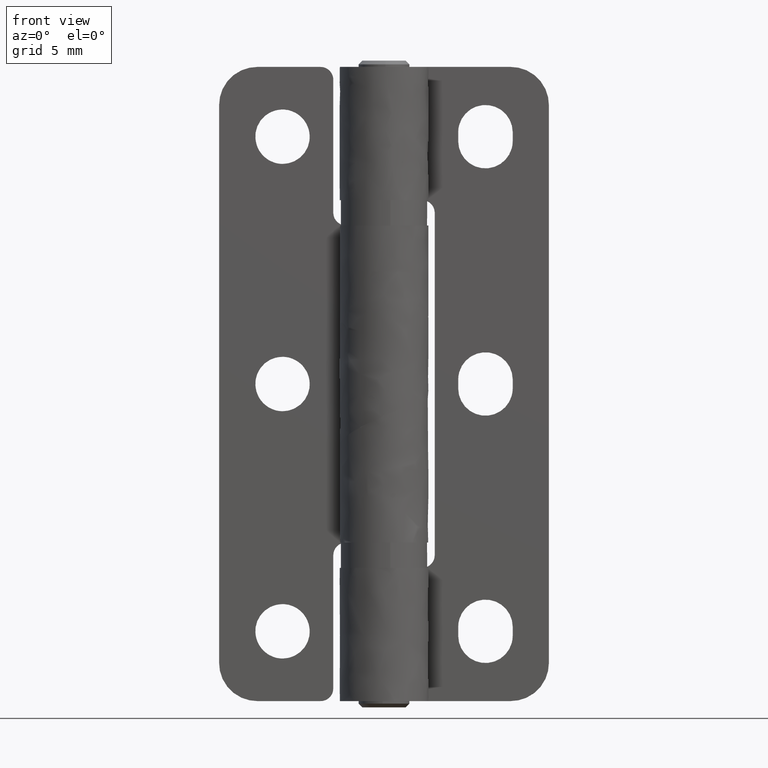
[diagram: clean part render]
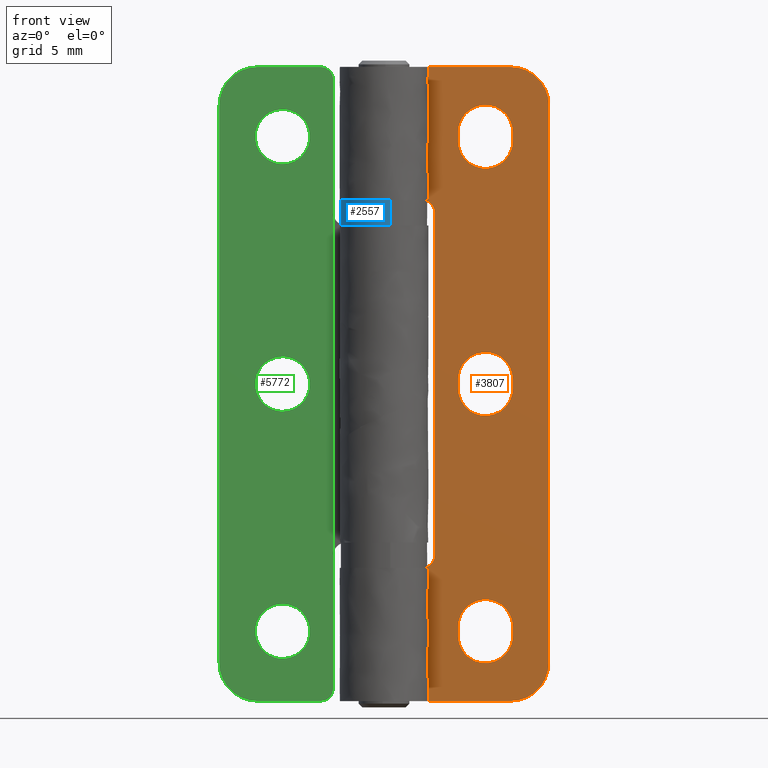
[diagram: same view with three faces highlighted in distinct colors, each labeled with its STEP entity id]
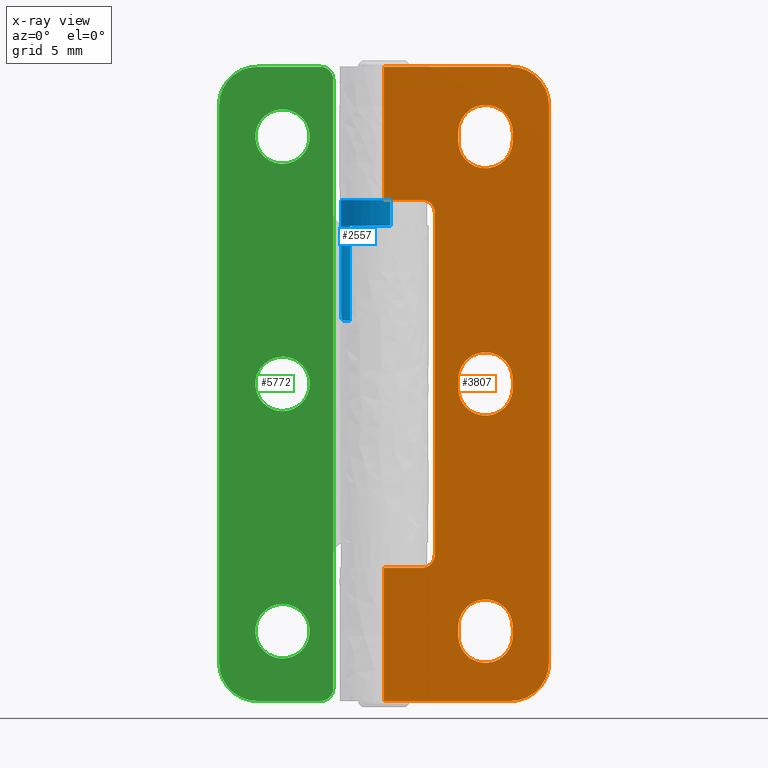
[diagram: x-ray of the same camera — body ghosted, the three highlighted faces saturated]
A machine part, front view with three faces highlighted in distinct colors.
The next image is the same camera in x-ray (body ghosted, the three faces saturated) — at least one of them is partly hidden behind the body in this view.
Their STEP definitions:

[orange] entity #3807 — the highlighted face is a freeform B-spline surface patch.
#3284=CARTESIAN_POINT('',(-1.749028E-014,2.0,10.500000000000000));
#3285=VERTEX_POINT('',#3284);
#3352=CARTESIAN_POINT('',(-1.749028E-014,2.0,0.0));
#3353=VERTEX_POINT('',#3352);
#3381=CARTESIAN_POINT('',(-1.749028E-014,2.0,10.500000000000000));
#3382=CARTESIAN_POINT('',(-1.749028E-014,2.0,0.0));
#3383=QUASI_UNIFORM_CURVE('',1,(#3381,#3382),.UNSPECIFIED.,.F.,.U.);
#3384=EDGE_CURVE('',#3285,#3353,#3383,.T.);
#3435=CARTESIAN_POINT('',(-1.749028E-014,2.0,39.500000000000000));
#3436=VERTEX_POINT('',#3435);
#3463=CARTESIAN_POINT('',(-1.749028E-014,2.0,50.0));
#3464=VERTEX_POINT('',#3463);
#3465=CARTESIAN_POINT('',(-1.749028E-014,2.0,50.0));
#3466=CARTESIAN_POINT('',(-1.749028E-014,2.0,39.500000000000000));
#3467=QUASI_UNIFORM_CURVE('',1,(#3465,#3466),.UNSPECIFIED.,.F.,.U.);
#3468=EDGE_CURVE('',#3464,#3436,#3467,.T.);
#3516=CARTESIAN_POINT('',(-0.649349974803451,2.000000000000115,-2.497499903090326));
#3517=CARTESIAN_POINT('',(13.649350323489710,2.000000000000115,-2.497499903090326));
#3518=CARTESIAN_POINT('',(-0.649349974803451,2.000000000000115,52.497501244194808));
#3519=CARTESIAN_POINT('',(13.649350323489710,2.000000000000115,52.497501244194808));
#3520=B_SPLINE_SURFACE_WITH_KNOTS('',1,1,((#3516,#3518),(#3517,#3519)),.UNSPECIFIED.,.F.,.F.,.U.,(2,2),(2,2),(0.0,14.298700298293159),(0.0,54.995001147285137),.UNSPECIFIED.);
#3521=CARTESIAN_POINT('',(2.999999999999440,2.000000000000025,39.500000000000000));
#3522=VERTEX_POINT('',#3521);
#3523=CARTESIAN_POINT('',(2.999999999999440,2.000000000000025,39.500000000000000));
#3524=CARTESIAN_POINT('',(-1.749028E-014,2.0,39.500000000000000));
#3525=QUASI_UNIFORM_CURVE('',1,(#3523,#3524),.UNSPECIFIED.,.F.,.U.);
#3526=EDGE_CURVE('',#3522,#3436,#3525,.T.);
#3527=ORIENTED_EDGE('',*,*,#3526,.F.);
#3528=CARTESIAN_POINT('',(3.999999999999430,2.000000000000035,38.500000000000000));
#3529=VERTEX_POINT('',#3528);
#3530=CARTESIAN_POINT('',(2.999999999999435,2.0,39.500000000000000));
#3531=CARTESIAN_POINT('',(3.999999999999436,2.000000000000000,39.500000000000000));
#3532=CARTESIAN_POINT('',(3.999999999999435,2.0,38.500000000000000));
#3540=(BOUNDED_CURVE()B_SPLINE_CURVE(2,(#3530,#3531,#3532),.UNSPECIFIED.,.F.,.U.)CURVE()GEOMETRIC_REPRESENTATION_ITEM()QUASI_UNIFORM_CURVE()RATIONAL_B_SPLINE_CURVE((1.0,0.707106781186548,1.0))REPRESENTATION_ITEM(''));
#3541=EDGE_CURVE('',#3522,#3529,#3540,.T.);
#3542=ORIENTED_EDGE('',*,*,#3541,.T.);
#3543=CARTESIAN_POINT('',(3.999999999999430,2.000000000000035,11.500000000000000));
#3544=VERTEX_POINT('',#3543);
#3545=CARTESIAN_POINT('',(3.999999999999430,2.000000000000035,11.500000000000000));
#3546=CARTESIAN_POINT('',(3.999999999999430,2.000000000000035,38.500000000000000));
#3547=QUASI_UNIFORM_CURVE('',1,(#3545,#3546),.UNSPECIFIED.,.F.,.U.);
#3548=EDGE_CURVE('',#3544,#3529,#3547,.T.);
#3549=ORIENTED_EDGE('',*,*,#3548,.F.);
#3550=CARTESIAN_POINT('',(2.999999999999435,2.000000000000025,10.500000000000000));
#3551=VERTEX_POINT('',#3550);
#3552=CARTESIAN_POINT('',(3.999999999999430,2.000000000000035,11.500000000000000));
#3553=CARTESIAN_POINT('',(3.999999999999436,2.000000000000000,10.499999999999998));
#3554=CARTESIAN_POINT('',(2.999999999999435,2.0,10.500000000000000));
#3562=(BOUNDED_CURVE()B_SPLINE_CURVE(2,(#3552,#3553,#3554),.UNSPECIFIED.,.F.,.U.)CURVE()GEOMETRIC_REPRESENTATION_ITEM()QUASI_UNIFORM_CURVE()RATIONAL_B_SPLINE_CURVE((1.0,0.707106781186548,1.0))REPRESENTATION_ITEM(''));
#3563=EDGE_CURVE('',#3544,#3551,#3562,.T.);
#3564=ORIENTED_EDGE('',*,*,#3563,.T.);
#3565=CARTESIAN_POINT('',(-1.749028E-014,2.0,10.500000000000000));
#3566=CARTESIAN_POINT('',(2.999999999999435,2.000000000000025,10.500000000000000));
#3567=QUASI_UNIFORM_CURVE('',1,(#3565,#3566),.UNSPECIFIED.,.F.,.U.);
#3568=EDGE_CURVE('',#3285,#3551,#3567,.T.);
#3569=ORIENTED_EDGE('',*,*,#3568,.F.);
#3570=ORIENTED_EDGE('',*,*,#3384,.T.);
#3571=CARTESIAN_POINT('',(9.999999999999089,2.000000000000090,-2.775558E-014));
#3572=VERTEX_POINT('',#3571);
#3573=CARTESIAN_POINT('',(9.999999999999089,2.000000000000090,-2.775558E-014));
#3574=CARTESIAN_POINT('',(-1.749028E-014,2.0,0.0));
#3575=QUASI_UNIFORM_CURVE('',1,(#3573,#3574),.UNSPECIFIED.,.F.,.U.);
#3576=EDGE_CURVE('',#3572,#3353,#3575,.T.);
#3577=ORIENTED_EDGE('',*,*,#3576,.F.);
#3578=CARTESIAN_POINT('',(12.999999999999099,2.000000000000115,3.0));
#3579=VERTEX_POINT('',#3578);
#3580=CARTESIAN_POINT('',(9.999999999999089,2.000000000000090,-2.775558E-014));
#3581=CARTESIAN_POINT('',(12.999999999999089,2.000000000000091,0.0));
#3582=CARTESIAN_POINT('',(12.999999999999091,2.000000000000090,3.0));
#3590=(BOUNDED_CURVE()B_SPLINE_CURVE(2,(#3580,#3581,#3582),.UNSPECIFIED.,.F.,.U.)CURVE()GEOMETRIC_REPRESENTATION_ITEM()QUASI_UNIFORM_CURVE()RATIONAL_B_SPLINE_CURVE((1.0,0.707106781186548,1.0))REPRESENTATION_ITEM(''));
#3591=EDGE_CURVE('',#3572,#3579,#3590,.T.);
#3592=ORIENTED_EDGE('',*,*,#3591,.T.);
#3593=CARTESIAN_POINT('',(12.999999999999099,2.000000000000115,47.0));
#3594=VERTEX_POINT('',#3593);
#3595=CARTESIAN_POINT('',(12.999999999999099,2.000000000000115,47.0));
#3596=CARTESIAN_POINT('',(12.999999999999099,2.000000000000115,3.0));
#3597=QUASI_UNIFORM_CURVE('',1,(#3595,#3596),.UNSPECIFIED.,.F.,.U.);
#3598=EDGE_CURVE('',#3594,#3579,#3597,.T.);
#3599=ORIENTED_EDGE('',*,*,#3598,.F.);
#3600=CARTESIAN_POINT('',(9.999999999999089,2.000000000000090,50.0));
#3601=VERTEX_POINT('',#3600);
#3602=CARTESIAN_POINT('',(12.999999999999091,2.000000000000090,47.0));
#3603=CARTESIAN_POINT('',(12.999999999999089,2.000000000000091,50.0));
#3604=CARTESIAN_POINT('',(9.999999999999089,2.000000000000090,50.0));
#3612=(BOUNDED_CURVE()B_SPLINE_CURVE(2,(#3602,#3603,#3604),.UNSPECIFIED.,.F.,.U.)CURVE()GEOMETRIC_REPRESENTATION_ITEM()QUASI_UNIFORM_CURVE()RATIONAL_B_SPLINE_CURVE((1.0,0.707106781186548,1.0))REPRESENTATION_ITEM(''));
#3613=EDGE_CURVE('',#3594,#3601,#3612,.T.);
#3614=ORIENTED_EDGE('',*,*,#3613,.T.);
#3615=CARTESIAN_POINT('',(9.999999999999089,2.000000000000090,50.0));
#3616=CARTESIAN_POINT('',(-1.749028E-014,2.0,50.0));
#3617=QUASI_UNIFORM_CURVE('',1,(#3615,#3616),.UNSPECIFIED.,.F.,.U.);
#3618=EDGE_CURVE('',#3601,#3464,#3617,.T.);
#3619=ORIENTED_EDGE('',*,*,#3618,.T.);
#3620=ORIENTED_EDGE('',*,*,#3468,.T.);
#3621=EDGE_LOOP('',(#3527,#3542,#3549,#3564,#3569,#3570,#3577,#3592,#3599,#3614,#3619,#3620));
#3622=FACE_OUTER_BOUND('',#3621,.T.);
#3623=CARTESIAN_POINT('',(5.849999999999430,2.000000000000095,5.150000000000090));
#3624=VERTEX_POINT('',#3623);
#3625=CARTESIAN_POINT('',(5.849999999999430,2.0,5.850000000000080));
#3626=VERTEX_POINT('',#3625);
#3627=CARTESIAN_POINT('',(5.849999999999430,2.000000000000095,5.150000000000090));
#3628=CARTESIAN_POINT('',(5.849999999999430,2.0,5.850000000000080));
#3629=QUASI_UNIFORM_CURVE('',1,(#3627,#3628),.UNSPECIFIED.,.F.,.U.);
#3630=EDGE_CURVE('',#3624,#3626,#3629,.T.);
#3631=ORIENTED_EDGE('',*,*,#3630,.T.);
#3632=CARTESIAN_POINT('',(10.149999999999419,2.000000000000115,5.850000000000080));
#3633=VERTEX_POINT('',#3632);
#3634=CARTESIAN_POINT('',(10.149999999999419,2.000000000000115,5.850000000000080));
#3635=CARTESIAN_POINT('',(10.150173732488501,2.000000000000111,6.087481217284027));
#3636=CARTESIAN_POINT('',(10.091079115251819,2.000000000000120,6.439145827969427));
#3637=CARTESIAN_POINT('',(9.876021789322333,2.000000000000113,6.932524260789001));
#3638=CARTESIAN_POINT('',(9.613348579623326,2.000000000000115,7.300697909131150));
#3639=CARTESIAN_POINT('',(9.253650554962421,2.000000000000112,7.614786662737056));
#3640=CARTESIAN_POINT('',(8.846120931615115,2.000000000000112,7.845674886657943));
#3641=CARTESIAN_POINT('',(8.413673285001508,2.000000000000105,7.976861667201620));
#3642=CARTESIAN_POINT('',(8.008682981063618,2.000000000000151,8.009184803878700));
#3643=CARTESIAN_POINT('',(7.622074420799099,2.000000000000094,7.978303223123772));
#3644=CARTESIAN_POINT('',(7.194233717551706,2.000000000000126,7.865575093879795));
#3645=CARTESIAN_POINT('',(6.788893889308236,2.000000000000110,7.645705476506777));
#3646=CARTESIAN_POINT('',(6.439662778610541,2.000000000000116,7.348138268840309));
#3647=CARTESIAN_POINT('',(6.174262221223428,2.000000000000118,7.016540554283237));
#3648=CARTESIAN_POINT('',(5.922885750232140,2.000000000000100,6.509477944673057));
#3649=CARTESIAN_POINT('',(5.849782319161709,2.000000000000162,6.105083439553001));
#3650=CARTESIAN_POINT('',(5.849999999999430,2.0,5.850000000000080));
#3651=B_SPLINE_CURVE_WITH_KNOTS('',3,(#3634,#3635,#3636,#3637,#3638,#3639,#3640,#3641,#3642,#3643,#3644,#3645,#3646,#3647,#3648,#3649,#3650),.UNSPECIFIED.,.F.,.U.,(4,1,1,1,1,1,1,1,1,1,1,1,1,1,4),(0.000000189036395,0.712360167025371,1.055371416327293,1.609463324525009,2.058006194968326,2.480169842712288,3.007879783866128,3.403587894815527,3.693848551918606,4.168752596459193,4.722848347572608,5.065850530502547,5.540786922185231,5.989319084379263,6.754466586415880),.UNSPECIFIED.);
#3652=EDGE_CURVE('',#3633,#3626,#3651,.T.);
#3653=ORIENTED_EDGE('',*,*,#3652,.F.);
#3654=CARTESIAN_POINT('',(10.149999999999521,2.000000000000115,5.150000000000090));
#3655=VERTEX_POINT('',#3654);
#3656=CARTESIAN_POINT('',(10.149999999999419,2.000000000000115,5.850000000000080));
#3657=CARTESIAN_POINT('',(10.149999999999521,2.000000000000115,5.150000000000090));
#3658=QUASI_UNIFORM_CURVE('',1,(#3656,#3657),.UNSPECIFIED.,.F.,.U.);
#3659=EDGE_CURVE('',#3633,#3655,#3658,.T.);
#3660=ORIENTED_EDGE('',*,*,#3659,.T.);
#3661=CARTESIAN_POINT('',(5.849999999999430,2.000000000000095,5.150000000000090));
#3662=CARTESIAN_POINT('',(5.849863077662194,2.000000000000096,4.912527606348308));
#3663=CARTESIAN_POINT('',(5.910349961054806,2.000000000000102,4.552041567183766));
#3664=CARTESIAN_POINT('',(6.100014354202898,2.000000000000108,4.124344410933158));
#3665=CARTESIAN_POINT('',(6.297176704295024,2.000000000000104,3.821258347113165));
#3666=CARTESIAN_POINT('',(6.542001463521348,2.000000000000112,3.554435395061139));
#3667=CARTESIAN_POINT('',(6.872187999293664,2.000000000000105,3.303208996120578));
#3668=CARTESIAN_POINT('',(7.261839352467202,2.000000000000156,3.113011006935092));
#3669=CARTESIAN_POINT('',(7.665600205558603,2.000000000000043,3.014538402605930));
#3670=CARTESIAN_POINT('',(8.044082222663201,2.000000000000189,2.991293959716013));
#3671=CARTESIAN_POINT('',(8.404239798876425,2.000000000000085,3.026762481119562));
#3672=CARTESIAN_POINT('',(8.829155094472979,2.000000000000128,3.147106858285228));
#3673=CARTESIAN_POINT('',(9.234488042391835,2.000000000000108,3.366987047241074));
#3674=CARTESIAN_POINT('',(9.605239748149995,2.000000000000121,3.694825946568653));
#3675=CARTESIAN_POINT('',(9.872016671864705,2.000000000000108,4.059198718250379));
#3676=CARTESIAN_POINT('',(10.090484455290930,2.000000000000124,4.552033043082905));
#3677=CARTESIAN_POINT('',(10.150130449039439,2.000000000000096,4.921320924698215));
#3678=CARTESIAN_POINT('',(10.149999999999521,2.000000000000115,5.150000000000090));
#3679=B_SPLINE_CURVE_WITH_KNOTS('',3,(#3661,#3662,#3663,#3664,#3665,#3666,#3667,#3668,#3669,#3670,#3671,#3672,#3673,#3674,#3675,#3676,#3677,#3678),.UNSPECIFIED.,.F.,.U.,(4,1,1,1,1,1,1,1,1,1,1,1,1,1,1,4),(0.000000189009767,0.712360167000960,1.081766626067422,1.398383845890344,1.794157782318272,2.163554400464885,2.638488548458036,3.087034748025591,3.403587894801259,3.772994982996884,4.168752596448351,4.722848347564085,5.145006751967520,5.646316981694810,6.068481810552859,6.754466586416001),.UNSPECIFIED.);
#3680=EDGE_CURVE('',#3624,#3655,#3679,.T.);
#3681=ORIENTED_EDGE('',*,*,#3680,.F.);
#3682=EDGE_LOOP('',(#3631,#3653,#3660,#3681));
#3683=FACE_BOUND('',#3682,.T.);
#3684=CARTESIAN_POINT('',(5.849999999999430,2.000000000000095,24.649999999999999));
#3685=VERTEX_POINT('',#3684);
#3686=CARTESIAN_POINT('',(5.849999999999430,2.0,25.350000000000001));
#3687=VERTEX_POINT('',#3686);
#3688=CARTESIAN_POINT('',(5.849999999999430,2.000000000000095,24.649999999999999));
#3689=CARTESIAN_POINT('',(5.849999999999430,2.0,25.350000000000001));
#3690=QUASI_UNIFORM_CURVE('',1,(#3688,#3689),.UNSPECIFIED.,.F.,.U.);
#3691=EDGE_CURVE('',#3685,#3687,#3690,.T.);
#3692=ORIENTED_EDGE('',*,*,#3691,.T.);
#3693=CARTESIAN_POINT('',(10.149999999999419,2.000000000000115,25.350000000000001));
#3694=VERTEX_POINT('',#3693);
#3695=CARTESIAN_POINT('',(10.149999999999419,2.000000000000115,25.350000000000001));
#3696=CARTESIAN_POINT('',(10.150162181567330,2.000000000000128,25.596278880550379));
#3697=CARTESIAN_POINT('',(10.087369490606340,2.000000000000091,25.956743446899001));
#3698=CARTESIAN_POINT('',(9.895171079300342,2.000000000000141,26.383051547469488));
#3699=CARTESIAN_POINT('',(9.702823502707435,2.000000000000100,26.678742044759581));
#3700=CARTESIAN_POINT('',(9.463966960986545,2.000000000000118,26.939046420633289));
#3701=CARTESIAN_POINT('',(9.121538061577990,2.000000000000125,27.202973158964351));
#3702=CARTESIAN_POINT('',(8.705885578503489,2.000000000000095,27.402688659011361));
#3703=CARTESIAN_POINT('',(8.247071929283877,2.000000000000129,27.499772182119649));
#3704=CARTESIAN_POINT('',(7.752772820111941,2.000000000000109,27.505894515203341));
#3705=CARTESIAN_POINT('',(7.284375044177778,2.000000000000044,27.400741234409590));
#3706=CARTESIAN_POINT('',(6.889717974451912,2.000000000000233,27.201968554524019));
#3707=CARTESIAN_POINT('',(6.596918885533601,1.999999999999931,26.990343403558629));
#3708=CARTESIAN_POINT('',(6.307836344345033,2.000000000000182,26.704856166972249));
#3709=CARTESIAN_POINT('',(6.049151244970526,2.000000000000191,26.301859093960012));
#3710=CARTESIAN_POINT('',(5.885122943512553,1.999999999999916,25.824900680362891));
#3711=CARTESIAN_POINT('',(5.849975923981247,2.000000000000368,25.508305315146519));
#3712=CARTESIAN_POINT('',(5.849999999999430,2.0,25.350000000000001));
#3713=B_SPLINE_CURVE_WITH_KNOTS('',3,(#3695,#3696,#3697,#3698,#3699,#3700,#3701,#3702,#3703,#3704,#3705,#3706,#3707,#3708,#3709,#3710,#3711,#3712),.UNSPECIFIED.,.F.,.U.,(4,1,1,1,1,1,1,1,1,1,1,1,1,1,1,4),(0.000000189030533,0.738760484992585,1.081766626084859,1.398383845906984,1.794157782333791,2.137162210115498,2.691250067198966,3.166189508696480,3.535534660074545,4.168752596456347,4.590923985880009,4.854772185548116,5.250544919294006,5.804638952321811,6.279552296592858,6.754466586415884),.UNSPECIFIED.);
#3714=EDGE_CURVE('',#3694,#3687,#3713,.T.);
#3715=ORIENTED_EDGE('',*,*,#3714,.F.);
#3716=CARTESIAN_POINT('',(10.149999999999521,2.000000000000115,24.649999999999999));
#3717=VERTEX_POINT('',#3716);
#3718=CARTESIAN_POINT('',(10.149999999999419,2.000000000000115,25.350000000000001));
#3719=CARTESIAN_POINT('',(10.149999999999521,2.000000000000115,24.649999999999999));
#3720=QUASI_UNIFORM_CURVE('',1,(#3718,#3719),.UNSPECIFIED.,.F.,.U.);
#3721=EDGE_CURVE('',#3694,#3717,#3720,.T.);
#3722=ORIENTED_EDGE('',*,*,#3721,.T.);
#3723=CARTESIAN_POINT('',(5.849999999999430,2.000000000000095,24.649999999999999));
#3724=CARTESIAN_POINT('',(5.849858779165365,2.000000000000133,24.412525709221921));
#3725=CARTESIAN_POINT('',(5.910362925265233,2.000000000000105,24.052047350654291));
#3726=CARTESIAN_POINT('',(6.117885486581298,2.000000000000124,23.583985785891301));
#3727=CARTESIAN_POINT('',(6.375280712192529,2.000000000000100,23.213666151501918));
#3728=CARTESIAN_POINT('',(6.775759545297840,2.000000000000138,22.850593602064539));
#3729=CARTESIAN_POINT('',(7.212529060366157,2.000000000000089,22.630763092666960));
#3730=CARTESIAN_POINT('',(7.682105542835208,2.000000000000159,22.510125193872991));
#3731=CARTESIAN_POINT('',(8.088933543672336,2.000000000000111,22.485106229662431));
#3732=CARTESIAN_POINT('',(8.490432858774419,2.000000000000120,22.547232218581250));
#3733=CARTESIAN_POINT('',(8.867861146581408,2.000000000000110,22.669320154163429));
#3734=CARTESIAN_POINT('',(9.202543834917860,2.000000000000116,22.850860831053470));
#3735=CARTESIAN_POINT('',(9.514669027683942,2.000000000000119,23.110282716295199));
#3736=CARTESIAN_POINT('',(9.797251000850276,2.000000000000118,23.437772637789731));
#3737=CARTESIAN_POINT('',(10.069226646203830,2.000000000000075,23.946527143562928));
#3738=CARTESIAN_POINT('',(10.150187468472399,2.000000000000230,24.394930632537481));
#3739=CARTESIAN_POINT('',(10.149999999999521,2.000000000000115,24.649999999999999));
#3740=B_SPLINE_CURVE_WITH_KNOTS('',3,(#3723,#3724,#3725,#3726,#3727,#3728,#3729,#3730,#3731,#3732,#3733,#3734,#3735,#3736,#3737,#3738,#3739),.UNSPECIFIED.,.F.,.U.,(4,1,1,1,1,1,1,1,1,1,1,1,1,1,4),(0.000000188992545,0.712360166985580,1.081766626052965,1.530308657337592,2.058006194936715,2.691250067176079,2.981479131880539,3.509124475276422,3.904914877060000,4.195150316660479,4.696456645602750,5.039465819145359,5.408860304408638,5.989319084373266,6.754466586415996),.UNSPECIFIED.);
#3741=EDGE_CURVE('',#3685,#3717,#3740,.T.);
#3742=ORIENTED_EDGE('',*,*,#3741,.F.);
#3743=EDGE_LOOP('',(#3692,#3715,#3722,#3742));
#3744=FACE_BOUND('',#3743,.T.);
#3745=CARTESIAN_POINT('',(10.149999999999521,2.000000000000115,44.149999999999999));
#3746=VERTEX_POINT('',#3745);
#3747=CARTESIAN_POINT('',(10.149999999999521,2.000000000000115,44.850000000000001));
#3748=VERTEX_POINT('',#3747);
#3749=CARTESIAN_POINT('',(10.149999999999521,2.000000000000115,44.149999999999999));
#3750=CARTESIAN_POINT('',(10.149999999999521,2.000000000000115,44.850000000000001));
#3751=QUASI_UNIFORM_CURVE('',1,(#3749,#3750),.UNSPECIFIED.,.F.,.U.);
#3752=EDGE_CURVE('',#3746,#3748,#3751,.T.);
#3753=ORIENTED_EDGE('',*,*,#3752,.F.);
#3754=CARTESIAN_POINT('',(5.849999999999460,2.0,44.149999999999999));
#3755=VERTEX_POINT('',#3754);
#3756=CARTESIAN_POINT('',(5.849999999999460,2.0,44.149999999999999));
#3757=CARTESIAN_POINT('',(5.849968014387434,2.000000000000007,43.991691763613993));
#3758=CARTESIAN_POINT('',(5.882217934254708,2.000000000000031,43.701486377050678));
#3759=CARTESIAN_POINT('',(6.034399369762696,2.000000000000042,43.230860586107688));
#3760=CARTESIAN_POINT('',(6.288144047336530,2.000000000000083,42.813393272280017));
#3761=CARTESIAN_POINT('',(6.659350732437056,2.000000000000072,42.446742987935032));
#3762=CARTESIAN_POINT('',(7.019832783154157,2.000000000000135,42.221579945838002));
#3763=CARTESIAN_POINT('',(7.406557118304620,2.000000000000080,42.072416622067713));
#3764=CARTESIAN_POINT('',(7.770581100987418,2.000000000000155,42.000010476851493));
#3765=CARTESIAN_POINT('',(8.185433601984457,2.000000000000116,41.994916956012112));
#3766=CARTESIAN_POINT('',(8.585764025745343,2.000000000000113,42.066908247485301));
#3767=CARTESIAN_POINT('',(8.988581533571525,2.000000000000117,42.225140159506061));
#3768=CARTESIAN_POINT('',(9.316012755798425,2.000000000000115,42.435310946480328));
#3769=CARTESIAN_POINT('',(9.593822653457204,2.000000000000118,42.693420072114030));
#3770=CARTESIAN_POINT('',(9.860021577274738,2.000000000000105,43.034365408334139));
#3771=CARTESIAN_POINT('',(10.088649040937380,2.000000000000143,43.525610227036559));
#3772=CARTESIAN_POINT('',(10.150080502692701,2.000000000000076,43.938919174778043));
#3773=CARTESIAN_POINT('',(10.149999999999521,2.000000000000115,44.149999999999999));
#3774=B_SPLINE_CURVE_WITH_KNOTS('',3,(#3756,#3757,#3758,#3759,#3760,#3761,#3762,#3763,#3764,#3765,#3766,#3767,#3768,#3769,#3770,#3771,#3772,#3773),.UNSPECIFIED.,.F.,.U.,(4,1,1,1,1,1,1,1,1,1,1,1,1,1,1,4),(0.000000188964543,0.474918795996707,0.870685045576015,1.477538983594073,1.926081946276798,2.427406655687564,2.744010609703895,3.166189508663689,3.535534660045101,3.984078664177717,4.379840001827607,4.828383082693812,5.145006751958825,5.514393879902284,6.121244228179045,6.754466586415989),.UNSPECIFIED.);
#3775=EDGE_CURVE('',#3755,#3746,#3774,.T.);
#3776=ORIENTED_EDGE('',*,*,#3775,.F.);
#3777=CARTESIAN_POINT('',(5.849999999999460,2.000000000000050,44.850000000000001));
#3778=VERTEX_POINT('',#3777);
#3779=CARTESIAN_POINT('',(5.849999999999460,2.000000000000050,44.850000000000001));
#3780=CARTESIAN_POINT('',(5.849999999999460,2.0,44.149999999999999));
#3781=QUASI_UNIFORM_CURVE('',1,(#3779,#3780),.UNSPECIFIED.,.F.,.U.);
#3782=EDGE_CURVE('',#3778,#3755,#3781,.T.);
#3783=ORIENTED_EDGE('',*,*,#3782,.F.);
#3784=CARTESIAN_POINT('',(10.149999999999521,2.000000000000115,44.850000000000001));
#3785=CARTESIAN_POINT('',(10.150015432015559,2.000000000000119,44.999499938186553));
#3786=CARTESIAN_POINT('',(10.115035877131740,2.000000000000111,45.333708762495519));
#3787=CARTESIAN_POINT('',(9.965302351367638,2.000000000000120,45.760458016702003));
#3788=CARTESIAN_POINT('',(9.731564258409856,2.000000000000114,46.144978673996782));
#3789=CARTESIAN_POINT('',(9.430790066317519,2.000000000000113,46.481029762131911));
#3790=CARTESIAN_POINT('',(9.037574862913733,2.000000000000119,46.754353739926337));
#3791=CARTESIAN_POINT('',(8.586246241383334,2.000000000000108,46.934804618109688));
#3792=CARTESIAN_POINT('',(8.080587456044762,2.000000000000153,47.022621710331308));
#3793=CARTESIAN_POINT('',(7.602311081277762,2.000000000000101,46.981413706339787));
#3794=CARTESIAN_POINT('',(7.114691847505763,2.000000000000113,46.826931225992261));
#3795=CARTESIAN_POINT('',(6.744032243153362,2.000000000000120,46.616958363280432));
#3796=CARTESIAN_POINT('',(6.443191123272479,2.000000000000113,46.344210596083009));
#3797=CARTESIAN_POINT('',(6.230784099804910,2.000000000000084,46.085378922533010));
#3798=CARTESIAN_POINT('',(6.021944301347423,2.000000000000278,45.737119881111532));
#3799=CARTESIAN_POINT('',(5.880001141618304,1.999999999999709,45.307334531945799));
#3800=CARTESIAN_POINT('',(5.849993543046076,2.000000000000511,44.981916301020469));
#3801=CARTESIAN_POINT('',(5.849999999999460,2.000000000000050,44.850000000000001));
#3802=B_SPLINE_CURVE_WITH_KNOTS('',3,(#3784,#3785,#3786,#3787,#3788,#3789,#3790,#3791,#3792,#3793,#3794,#3795,#3796,#3797,#3798,#3799,#3800,#3801),.UNSPECIFIED.,.F.,.U.,(4,1,1,1,1,1,1,1,1,1,1,1,1,1,1,4),(0.000000189014878,0.448507029328391,1.002608610602240,1.345614650424130,1.794157782324653,2.348247459156046,2.770410053430660,3.245343887661079,3.878512567874842,4.195150316672297,4.775615531000056,5.145006751971009,5.408860304416077,5.778237671042023,6.358711001804389,6.754466586415894),.UNSPECIFIED.);
#3803=EDGE_CURVE('',#3748,#3778,#3802,.T.);
#3804=ORIENTED_EDGE('',*,*,#3803,.F.);
#3805=EDGE_LOOP('',(#3753,#3776,#3783,#3804));
#3806=FACE_BOUND('',#3805,.T.);
#3807=ADVANCED_FACE('',(#3622,#3683,#3744,#3806),#3520,.T.);

[blue] entity #2557 — the highlighted face is a freeform B-spline surface patch.
#2092=CARTESIAN_POINT('',(-2.673948391424185,2.100000000000000,37.500000000000000));
#2093=VERTEX_POINT('',#2092);
#2094=CARTESIAN_POINT('',(-0.502548068403932,3.362654522684078,37.500000000000107));
#2095=VERTEX_POINT('',#2094);
#2096=CARTESIAN_POINT('',(-2.673948391424185,2.100000000000000,37.500000000000000));
#2097=CARTESIAN_POINT('',(-1.839200255805258,3.162892111657000,37.500000000000064));
#2098=CARTESIAN_POINT('',(-0.502548068403932,3.362654522684078,37.500000000000107));
#2106=(BOUNDED_CURVE()B_SPLINE_CURVE(2,(#2096,#2097,#2098),.UNSPECIFIED.,.F.,.U.)B_SPLINE_CURVE_WITH_KNOTS((3,3),(0.0,0.134990044896966),.UNSPECIFIED.)CURVE()GEOMETRIC_REPRESENTATION_ITEM()RATIONAL_B_SPLINE_CURVE((1.0,0.873544505314346,0.883650873869368))REPRESENTATION_ITEM(''));
#2107=EDGE_CURVE('',#2093,#2095,#2106,.T.);
#2109=CARTESIAN_POINT('',(0.502551997877145,-3.362653935425066,37.500000000000000));
#2110=VERTEX_POINT('',#2109);
#2128=CARTESIAN_POINT('',(-3.398529093593285,-0.100000000000000,37.500000000000000));
#2129=VERTEX_POINT('',#2128);
#2130=CARTESIAN_POINT('',(0.502551997877146,-3.362653935425068,37.500000000000007));
#2131=CARTESIAN_POINT('',(0.006835950033634,-3.436739195165607,37.500000000000007));
#2132=CARTESIAN_POINT('',(-0.489170897170437,-3.364626551842191,37.500000000000000));
#2133=CARTESIAN_POINT('',(-3.314555881678830,-2.953854037737428,37.499999999999993));
#2134=CARTESIAN_POINT('',(-3.398529093593286,-0.100000000000003,37.500000000000000));
#2142=(BOUNDED_CURVE()B_SPLINE_CURVE(2,(#2130,#2131,#2132,#2133,#2134),.UNSPECIFIED.,.F.,.U.)B_SPLINE_CURVE_WITH_KNOTS((3,2,3),(0.695609904967507,0.750000000000000,1.0),.UNSPECIFIED.)CURVE()GEOMETRIC_REPRESENTATION_ITEM()RATIONAL_B_SPLINE_CURVE((0.920267274506756,0.949048640004651,1.0,0.765805888163505,1.0))REPRESENTATION_ITEM(''));
#2143=EDGE_CURVE('',#2110,#2129,#2142,.T.);
#2165=CARTESIAN_POINT('',(-3.376388603226825,0.400000000000000,37.0));
#2166=VERTEX_POINT('',#2165);
#2167=CARTESIAN_POINT('',(-3.376388603226825,0.400000000000009,37.0));
#2168=CARTESIAN_POINT('',(-3.405909257048772,0.150817002189450,37.249182997810557));
#2169=CARTESIAN_POINT('',(-3.398529093593286,-0.099999999999999,37.500000000000000));
#2177=(BOUNDED_CURVE()B_SPLINE_CURVE(2,(#2167,#2168,#2169),.UNSPECIFIED.,.F.,.U.)CURVE()GEOMETRIC_REPRESENTATION_ITEM()QUASI_UNIFORM_CURVE()RATIONAL_B_SPLINE_CURVE((1.0,0.997287733989585,1.0))REPRESENTATION_ITEM(''));
#2178=EDGE_CURVE('',#2166,#2129,#2177,.T.);
#2204=CARTESIAN_POINT('',(-3.217141588429080,1.100000000000000,30.0));
#2205=VERTEX_POINT('',#2204);
#2206=CARTESIAN_POINT('',(-3.376388603226825,0.400000000000000,30.699999999999999));
#2207=VERTEX_POINT('',#2206);
#2208=CARTESIAN_POINT('',(-3.217141588429085,1.100000000000000,30.0));
#2209=CARTESIAN_POINT('',(-3.232318538008770,1.055612367565187,30.0));
#2210=CARTESIAN_POINT('',(-3.246346288248855,1.011586832173745,30.004185676620612));
#2211=CARTESIAN_POINT('',(-3.265785333288890,0.946131170841965,30.016759194258871));
#2212=CARTESIAN_POINT('',(-3.271997464484592,0.924410694967024,30.022006067640991));
#2213=CARTESIAN_POINT('',(-3.283902404926151,0.881185301445307,30.034697434204531));
#2214=CARTESIAN_POINT('',(-3.289617764696998,0.859584894326923,30.042189319716350));
#2215=CARTESIAN_POINT('',(-3.305679253735196,0.796473216677799,30.067600799865978));
#2216=CARTESIAN_POINT('',(-3.315049599237199,0.756290191383150,30.088491088603011));
#2217=CARTESIAN_POINT('',(-3.331564691156839,0.679856902312622,30.138253296651420));
#2218=CARTESIAN_POINT('',(-3.338751220014484,0.643317715396455,30.167498324054030));
#2219=CARTESIAN_POINT('',(-3.350754286510747,0.577549221730031,30.231852663960289));
#2220=CARTESIAN_POINT('',(-3.355658744856499,0.547956616801758,30.267095677071548));
#2221=CARTESIAN_POINT('',(-3.361758096326973,0.508682630170671,30.324655783881060));
#2222=CARTESIAN_POINT('',(-3.363583266494174,0.496420964819787,30.344708065505230));
#2223=CARTESIAN_POINT('',(-3.366789786889622,0.474186351393582,30.385520608554341));
#2224=CARTESIAN_POINT('',(-3.368182998898404,0.464139662351543,30.406374564933870));
#2225=CARTESIAN_POINT('',(-3.371827182515211,0.437162226405421,30.470254170125109));
#2226=CARTESIAN_POINT('',(-3.373557316939930,0.423319291858378,30.514803849065860));
#2227=CARTESIAN_POINT('',(-3.375844325215010,0.404676766632367,30.606619079941090));
#2228=CARTESIAN_POINT('',(-3.376388603226824,0.400000000000000,30.653047648541168));
#2229=CARTESIAN_POINT('',(-3.376388603226825,0.400000000000000,30.699999999999999));
#2230=B_SPLINE_CURVE_WITH_KNOTS('',3,(#2208,#2209,#2210,#2211,#2212,#2213,#2214,#2215,#2216,#2217,#2218,#2219,#2220,#2221,#2222,#2223,#2224,#2225,#2226,#2227,#2228,#2229),.UNSPECIFIED.,.F.,.U.,(4,2,2,2,2,2,2,2,2,2,4),(0.0,0.124999999999991,0.187499999999988,0.249999999999984,0.374999999999980,0.499999999999976,0.624999999999972,0.687499999999974,0.749999999999975,0.874999999999988,1.0),.UNSPECIFIED.);
#2231=EDGE_CURVE('',#2205,#2207,#2230,.T.);
#2255=CARTESIAN_POINT('',(-2.673948391424185,2.100000000000000,30.0));
#2256=VERTEX_POINT('',#2255);
#2257=CARTESIAN_POINT('',(-3.217141588429082,1.100000000000001,30.0));
#2258=CARTESIAN_POINT('',(-3.030418926958649,1.646102945198814,30.000000000000004));
#2259=CARTESIAN_POINT('',(-2.673948391424187,2.100000000000001,30.0));
#2267=(BOUNDED_CURVE()B_SPLINE_CURVE(2,(#2257,#2258,#2259),.UNSPECIFIED.,.F.,.U.)CURVE()GEOMETRIC_REPRESENTATION_ITEM()QUASI_UNIFORM_CURVE()RATIONAL_B_SPLINE_CURVE((1.0,0.985896887075317,1.0))REPRESENTATION_ITEM(''));
#2268=EDGE_CURVE('',#2205,#2256,#2267,.T.);
#2285=CARTESIAN_POINT('',(-3.376388603226825,0.400000000000000,30.699999999999999));
#2286=CARTESIAN_POINT('',(-3.376388603226825,0.400000000000000,37.0));
#2287=QUASI_UNIFORM_CURVE('',1,(#2285,#2286),.UNSPECIFIED.,.F.,.U.);
#2288=EDGE_CURVE('',#2207,#2166,#2287,.T.);
#2302=CARTESIAN_POINT('',(-2.673948391424185,2.100000000000000,30.0));
#2303=CARTESIAN_POINT('',(-2.673948391424185,2.100000000000000,37.500000000000000));
#2304=QUASI_UNIFORM_CURVE('',1,(#2302,#2303),.UNSPECIFIED.,.F.,.U.);
#2305=EDGE_CURVE('',#2256,#2093,#2304,.T.);
#2451=CARTESIAN_POINT('',(-0.502545930776717,3.362654842148110,39.500000000000000));
#2452=VERTEX_POINT('',#2451);
#2453=CARTESIAN_POINT('',(-0.502545930776717,3.362654842148110,39.500000000000000));
#2454=CARTESIAN_POINT('',(-0.502548068403932,3.362654522684078,37.500000000000107));
#2455=QUASI_UNIFORM_CURVE('',1,(#2453,#2454),.UNSPECIFIED.,.F.,.U.);
#2456=EDGE_CURVE('',#2452,#2095,#2455,.T.);
#2475=CARTESIAN_POINT('',(0.502545930776716,-3.362654842148110,39.500000000000000));
#2476=VERTEX_POINT('',#2475);
#2490=CARTESIAN_POINT('',(0.502545930776716,-3.362654842148110,39.500000000000000));
#2491=CARTESIAN_POINT('',(0.502551997877145,-3.362653935425066,37.500000000000000));
#2492=QUASI_UNIFORM_CURVE('',1,(#2490,#2491),.UNSPECIFIED.,.F.,.U.);
#2493=EDGE_CURVE('',#2476,#2110,#2492,.T.);
#2498=CARTESIAN_POINT('',(0.502551997840674,-3.362653935430516,39.737499999999997));
#2499=CARTESIAN_POINT('',(-2.860101937589842,-3.865205933271190,39.737500000000011));
#2500=CARTESIAN_POINT('',(-3.362653935430516,-0.502551997840674,39.737499999999997));
#2501=CARTESIAN_POINT('',(-3.865205933271190,2.860101937589842,39.737500000000011));
#2502=CARTESIAN_POINT('',(-0.502551997840674,3.362653935430516,39.737499999999997));
#2503=CARTESIAN_POINT('',(0.502551997840674,-3.362653935430516,29.756562499999990));
#2504=CARTESIAN_POINT('',(-2.860101937589842,-3.865205933271190,29.756562499999987));
#2505=CARTESIAN_POINT('',(-3.362653935430516,-0.502551997840674,29.756562499999990));
#2506=CARTESIAN_POINT('',(-3.865205933271190,2.860101937589842,29.756562499999987));
#2507=CARTESIAN_POINT('',(-0.502551997840674,3.362653935430516,29.756562499999990));
#2515=(BOUNDED_SURFACE()B_SPLINE_SURFACE(2,1,((#2498,#2503),(#2499,#2504),(#2500,#2505),(#2501,#2506),(#2502,#2507)),.UNSPECIFIED.,.F.,.F.,.U.)B_SPLINE_SURFACE_WITH_KNOTS((3,2,3),(2,2),(0.0,5.633304448274091,11.266608896548179),(0.0,9.980937500000010),.UNSPECIFIED.)GEOMETRIC_REPRESENTATION_ITEM()RATIONAL_B_SPLINE_SURFACE(((1.0,1.0),(0.707106781186548,0.707106781186548),(1.0,1.0),(0.707106781186548,0.707106781186548),(1.0,1.0)))REPRESENTATION_ITEM('')SURFACE());
#2516=ORIENTED_EDGE('',*,*,#2107,.F.);
#2517=ORIENTED_EDGE('',*,*,#2305,.F.);
#2518=ORIENTED_EDGE('',*,*,#2268,.F.);
#2519=ORIENTED_EDGE('',*,*,#2231,.T.);
#2520=ORIENTED_EDGE('',*,*,#2288,.T.);
#2521=ORIENTED_EDGE('',*,*,#2178,.T.);
#2522=ORIENTED_EDGE('',*,*,#2143,.F.);
#2523=ORIENTED_EDGE('',*,*,#2493,.F.);
#2524=CARTESIAN_POINT('',(-3.400000000000000,0.0,39.500000000000000));
#2525=VERTEX_POINT('',#2524);
#2526=CARTESIAN_POINT('',(0.502545930776716,-3.362654842148110,39.500000000000000));
#2527=CARTESIAN_POINT('',(0.252660560759025,-3.399999999994701,39.500000000000007));
#2528=CARTESIAN_POINT('',(-7.620491E-013,-3.399999999994904,39.500000000000007));
#2529=CARTESIAN_POINT('',(-3.400000000000354,-3.399999999997643,39.500000000000000));
#2530=CARTESIAN_POINT('',(-3.400000000000000,0.0,39.500000000000000));
#2538=(BOUNDED_CURVE()B_SPLINE_CURVE(2,(#2526,#2527,#2528,#2529,#2530),.UNSPECIFIED.,.F.,.U.)B_SPLINE_CURVE_WITH_KNOTS((3,2,3),(0.224511332230518,0.250000000000000,0.500000000000000),.UNSPECIFIED.)CURVE()GEOMETRIC_REPRESENTATION_ITEM()RATIONAL_B_SPLINE_CURVE((0.946365442904702,0.970138168214918,1.0,0.707106781186548,1.0))REPRESENTATION_ITEM(''));
#2539=EDGE_CURVE('',#2476,#2525,#2538,.T.);
#2540=ORIENTED_EDGE('',*,*,#2539,.T.);
#2541=CARTESIAN_POINT('',(-3.400000000000000,0.0,39.500000000000000));
#2542=CARTESIAN_POINT('',(-3.399999999999591,2.929632774631717,39.500000000000000));
#2543=CARTESIAN_POINT('',(-0.502545930776717,3.362654842148110,39.500000000000000));
#2551=(BOUNDED_CURVE()B_SPLINE_CURVE(2,(#2541,#2542,#2543),.UNSPECIFIED.,.F.,.U.)B_SPLINE_CURVE_WITH_KNOTS((3,3),(0.500000000000000,0.724511332230518),.UNSPECIFIED.)CURVE()GEOMETRIC_REPRESENTATION_ITEM()RATIONAL_B_SPLINE_CURVE((1.0,0.736968612971629,0.946365442904702))REPRESENTATION_ITEM(''));
#2552=EDGE_CURVE('',#2525,#2452,#2551,.T.);
#2553=ORIENTED_EDGE('',*,*,#2552,.T.);
#2554=ORIENTED_EDGE('',*,*,#2456,.T.);
#2555=EDGE_LOOP('',(#2516,#2517,#2518,#2519,#2520,#2521,#2522,#2523,#2540,#2553,#2554));
#2556=FACE_OUTER_BOUND('',#2555,.T.);
#2557=ADVANCED_FACE('',(#2556),#2515,.T.);

[green] entity #5772 — the highlighted face is a freeform B-spline surface patch.
#4968=CARTESIAN_POINT('',(-8.000000000000570,2.0,42.350000000000001));
#4969=VERTEX_POINT('',#4968);
#4970=CARTESIAN_POINT('',(-6.603688393633194,2.000000000000255,42.865125724124709));
#4971=VERTEX_POINT('',#4970);
#4972=CARTESIAN_POINT('',(-8.000000000000570,2.0,42.350000000000001));
#4973=CARTESIAN_POINT('',(-7.206824392339179,2.000000000000128,42.350000000000442));
#4974=CARTESIAN_POINT('',(-6.603688393633194,2.000000000000254,42.865125724124709));
#4982=(BOUNDED_CURVE()B_SPLINE_CURVE(2,(#4972,#4973,#4974),.UNSPECIFIED.,.F.,.U.)B_SPLINE_CURVE_WITH_KNOTS((3,3),(0.0,0.113143004435292),.UNSPECIFIED.)CURVE()GEOMETRIC_REPRESENTATION_ITEM()RATIONAL_B_SPLINE_CURVE((1.0,0.867444724978890,0.854871066514859))REPRESENTATION_ITEM(''));
#4983=EDGE_CURVE('',#4969,#4971,#4982,.T.);
#5024=CARTESIAN_POINT('',(-9.396311606367949,2.000000000000255,46.134874275875291));
#5025=VERTEX_POINT('',#5024);
#5031=CARTESIAN_POINT('',(-9.396311606367949,2.000000000000255,46.134874275875291));
#5032=CARTESIAN_POINT('',(-9.531103475242352,2.000000000000254,46.019815136302661));
#5033=CARTESIAN_POINT('',(-9.753406020283379,2.000000000000239,45.776369384979553));
#5034=CARTESIAN_POINT('',(-10.008662898959480,2.000000000000220,45.322327181617403));
#5035=CARTESIAN_POINT('',(-10.142749212519870,2.000000000000195,44.845731027879843));
#5036=CARTESIAN_POINT('',(-10.158700589867451,2.000000000000171,44.407413758169511));
#5037=CARTESIAN_POINT('',(-10.098233819666399,2.000000000000140,43.960629381995517));
#5038=CARTESIAN_POINT('',(-9.935717815649753,2.000000000000112,43.506857273547887));
#5039=CARTESIAN_POINT('',(-9.644422047606428,2.000000000000080,43.090348685579563));
#5040=CARTESIAN_POINT('',(-9.344433288952564,2.000000000000054,42.810186009836073));
#5041=CARTESIAN_POINT('',(-9.048999034862852,2.000000000000041,42.612522835035207));
#5042=CARTESIAN_POINT('',(-8.613333332120735,2.000000000000006,42.413712005143751));
#5043=CARTESIAN_POINT('',(-8.245396614135215,2.000000000000040,42.349827017176437));
#5044=CARTESIAN_POINT('',(-8.000000000000570,2.0,42.350000000000001));
#5045=B_SPLINE_CURVE_WITH_KNOTS('',3,(#5031,#5032,#5033,#5034,#5035,#5036,#5037,#5038,#5039,#5040,#5041,#5042,#5043,#5044),.UNSPECIFIED.,.F.,.U.,(4,1,1,1,1,1,1,1,1,1,1,4),(0.000000091644033,0.531656704985584,0.981537507899752,1.554089233824765,2.003892194187475,2.290198439456713,2.903648797634627,3.435310290704011,3.803388104782701,4.130554211459133,4.498645233983950,5.234759896436289),.UNSPECIFIED.);
#5046=EDGE_CURVE('',#5025,#4969,#5045,.T.);
#5069=CARTESIAN_POINT('',(-8.000000000000570,2.0,46.649999999999999));
#5070=VERTEX_POINT('',#5069);
#5071=CARTESIAN_POINT('',(-6.603688393633194,2.000000000000255,42.865125724124709));
#5072=CARTESIAN_POINT('',(-6.416961361212105,2.000000000000251,43.024366329949451));
#5073=CARTESIAN_POINT('',(-6.152196401063642,2.000000000000237,43.343874035695627));
#5074=CARTESIAN_POINT('',(-5.918406034770861,2.000000000000209,43.885605764196427));
#5075=CARTESIAN_POINT('',(-5.841879103129001,2.000000000000188,44.332383687467647));
#5076=CARTESIAN_POINT('',(-5.854249644018950,2.000000000000155,44.742337251531509));
#5077=CARTESIAN_POINT('',(-5.924630593387106,2.000000000000155,45.104967388521693));
#5078=CARTESIAN_POINT('',(-6.089046825806038,2.000000000000080,45.525911667576032));
#5079=CARTESIAN_POINT('',(-6.345551038526973,2.000000000000120,45.900326371700523));
#5080=CARTESIAN_POINT('',(-6.655570403058614,2.000000000000014,46.189811618643063));
#5081=CARTESIAN_POINT('',(-6.951001251041696,2.000000000000076,46.387476436645557));
#5082=CARTESIAN_POINT('',(-7.386666290595445,1.999999999999986,46.586288791852922));
#5083=CARTESIAN_POINT('',(-7.754603679768860,2.000000000000023,46.650172692998893));
#5084=CARTESIAN_POINT('',(-8.000000000000570,2.0,46.649999999999999));
#5085=B_SPLINE_CURVE_WITH_KNOTS('',3,(#5071,#5072,#5073,#5074,#5075,#5076,#5077,#5078,#5079,#5080,#5081,#5082,#5083,#5084),.UNSPECIFIED.,.F.,.U.,(4,1,1,1,1,1,1,1,1,1,1,4),(0.000000091646151,0.736151504239418,1.226912751091834,1.758584464230884,2.085691164228253,2.453778052277333,2.862748309827946,3.435310290704471,3.803388104783049,4.130554211459426,4.498645233984239,5.234759896436531),.UNSPECIFIED.);
#5086=EDGE_CURVE('',#4971,#5070,#5085,.T.);
#5088=CARTESIAN_POINT('',(-8.000000000000570,2.0,46.649999999999999));
#5089=CARTESIAN_POINT('',(-8.793175607661961,2.000000000000127,46.649999999999558));
#5090=CARTESIAN_POINT('',(-9.396311606367947,2.000000000000255,46.134874275875291));
#5098=(BOUNDED_CURVE()B_SPLINE_CURVE(2,(#5088,#5089,#5090),.UNSPECIFIED.,.F.,.U.)B_SPLINE_CURVE_WITH_KNOTS((3,3),(0.500000000000000,0.613143004435292),.UNSPECIFIED.)CURVE()GEOMETRIC_REPRESENTATION_ITEM()RATIONAL_B_SPLINE_CURVE((1.0,0.867444724978890,0.854871066514859))REPRESENTATION_ITEM(''));
#5099=EDGE_CURVE('',#5070,#5025,#5098,.T.);
#5154=CARTESIAN_POINT('',(-8.000000000000570,2.0,22.850000000000001));
#5155=VERTEX_POINT('',#5154);
#5156=CARTESIAN_POINT('',(-6.603688393633194,2.000000000000255,23.365125724124709));
#5157=VERTEX_POINT('',#5156);
#5158=CARTESIAN_POINT('',(-8.000000000000570,2.0,22.850000000000001));
#5159=CARTESIAN_POINT('',(-7.206824392339179,2.000000000000128,22.850000000000446));
#5160=CARTESIAN_POINT('',(-6.603688393633194,2.000000000000254,23.365125724124702));
#5168=(BOUNDED_CURVE()B_SPLINE_CURVE(2,(#5158,#5159,#5160),.UNSPECIFIED.,.F.,.U.)B_SPLINE_CURVE_WITH_KNOTS((3,3),(0.0,0.113143004435292),.UNSPECIFIED.)CURVE()GEOMETRIC_REPRESENTATION_ITEM()RATIONAL_B_SPLINE_CURVE((1.0,0.867444724978890,0.854871066514859))REPRESENTATION_ITEM(''));
#5169=EDGE_CURVE('',#5155,#5157,#5168,.T.);
#5210=CARTESIAN_POINT('',(-9.396311606367949,2.000000000000255,26.634874275875301));
#5211=VERTEX_POINT('',#5210);
#5217=CARTESIAN_POINT('',(-9.396311606367949,2.000000000000255,26.634874275875301));
#5218=CARTESIAN_POINT('',(-9.531097743670438,2.000000000000248,26.519812604235920));
#5219=CARTESIAN_POINT('',(-9.771963808555480,2.000000000000245,26.256097841056949));
#5220=CARTESIAN_POINT('',(-9.993011999913239,2.000000000000219,25.844683154450308));
#5221=CARTESIAN_POINT('',(-10.111540231870190,2.000000000000196,25.452025785886409));
#5222=CARTESIAN_POINT('',(-10.169092759390621,2.000000000000179,25.017989769335141));
#5223=CARTESIAN_POINT('',(-10.126557017857589,2.000000000000149,24.579400994134652));
#5224=CARTESIAN_POINT('',(-9.999266340139874,2.000000000000124,24.189507626127661));
#5225=CARTESIAN_POINT('',(-9.842217692458659,2.000000000000096,23.870889392891979));
#5226=CARTESIAN_POINT('',(-9.624407806112092,2.000000000000091,23.571683043017710));
#5227=CARTESIAN_POINT('',(-9.344436595569697,2.000000000000056,23.310187452272078));
#5228=CARTESIAN_POINT('',(-9.003564042126232,2.000000000000039,23.082066803846601));
#5229=CARTESIAN_POINT('',(-8.558877730134645,2.000000000000005,22.899331373969410));
#5230=CARTESIAN_POINT('',(-8.190844884123843,2.000000000000008,22.849936347184759));
#5231=CARTESIAN_POINT('',(-8.000000000000570,2.0,22.850000000000001));
#5232=B_SPLINE_CURVE_WITH_KNOTS('',3,(#5217,#5218,#5219,#5220,#5221,#5222,#5223,#5224,#5225,#5226,#5227,#5228,#5229,#5230,#5231),.UNSPECIFIED.,.F.,.U.,(4,1,1,1,1,1,1,1,1,1,1,1,4),(0.000000091642166,0.531656704982862,1.063329897334823,1.390497717113948,1.758584464227442,2.371995580393942,2.699150679701667,2.985447711150204,3.435310290702206,3.803388104781154,4.130554211457911,4.662235511770788,5.234759896436406),.UNSPECIFIED.);
#5233=EDGE_CURVE('',#5211,#5155,#5232,.T.);
#5256=CARTESIAN_POINT('',(-8.000000000000570,2.0,27.149999999999999));
#5257=VERTEX_POINT('',#5256);
#5258=CARTESIAN_POINT('',(-6.603688393633194,2.000000000000255,23.365125724124709));
#5259=CARTESIAN_POINT('',(-6.437750067448760,2.000000000000252,23.506704062813821));
#5260=CARTESIAN_POINT('',(-6.167667218614073,2.000000000000230,23.820087125188518));
#5261=CARTESIAN_POINT('',(-5.951474009995877,2.000000000000231,24.295899647938221));
#5262=CARTESIAN_POINT('',(-5.860205911312750,2.000000000000171,24.709764997978318));
#5263=CARTESIAN_POINT('',(-5.838915853318487,2.000000000000185,25.092261037006221));
#5264=CARTESIAN_POINT('',(-5.886765546496423,2.000000000000151,25.445391641212922));
#5265=CARTESIAN_POINT('',(-5.990468078212945,2.000000000000118,25.784931094764090));
#5266=CARTESIAN_POINT('',(-6.164867757996966,2.000000000000098,26.156518246416489));
#5267=CARTESIAN_POINT('',(-6.446102226934097,2.000000000000092,26.513478072318041));
#5268=CARTESIAN_POINT('',(-6.862642037077914,2.000000000000026,26.847045524661869));
#5269=CARTESIAN_POINT('',(-7.359347675565764,2.000000000000030,27.085161076843640));
#5270=CARTESIAN_POINT('',(-7.781888130726634,1.999999999999998,27.150090460027290));
#5271=CARTESIAN_POINT('',(-8.000000000000570,2.0,27.149999999999999));
#5272=B_SPLINE_CURVE_WITH_KNOTS('',3,(#5258,#5259,#5260,#5261,#5262,#5263,#5264,#5265,#5266,#5267,#5268,#5269,#5270,#5271),.UNSPECIFIED.,.F.,.U.,(4,1,1,1,1,1,1,1,1,1,1,4),(0.000000091638063,0.654353375938978,1.226912751085734,1.554089233819432,1.922095911084920,2.371995580392220,2.617356233997807,2.985447711148843,3.598898781037374,3.966976078325144,4.580440657544927,5.234759896436536),.UNSPECIFIED.);
#5273=EDGE_CURVE('',#5157,#5257,#5272,.T.);
#5275=CARTESIAN_POINT('',(-8.000000000000570,2.0,27.149999999999999));
#5276=CARTESIAN_POINT('',(-8.793175607661961,2.000000000000127,27.149999999999562));
#5277=CARTESIAN_POINT('',(-9.396311606367949,2.000000000000255,26.634874275875294));
#5285=(BOUNDED_CURVE()B_SPLINE_CURVE(2,(#5275,#5276,#5277),.UNSPECIFIED.,.F.,.U.)B_SPLINE_CURVE_WITH_KNOTS((3,3),(0.500000000000000,0.613143004435292),.UNSPECIFIED.)CURVE()GEOMETRIC_REPRESENTATION_ITEM()RATIONAL_B_SPLINE_CURVE((1.0,0.867444724978890,0.854871066514859))REPRESENTATION_ITEM(''));
#5286=EDGE_CURVE('',#5257,#5211,#5285,.T.);
#5341=CARTESIAN_POINT('',(-8.000000000000570,2.0,3.350000000000000));
#5342=VERTEX_POINT('',#5341);
#5343=CARTESIAN_POINT('',(-6.603688393633194,2.000000000000255,3.865125724124704));
#5344=VERTEX_POINT('',#5343);
#5345=CARTESIAN_POINT('',(-8.000000000000570,2.0,3.350000000000000));
#5346=CARTESIAN_POINT('',(-7.206824392339179,2.000000000000128,3.350000000000441));
#5347=CARTESIAN_POINT('',(-6.603688393633195,2.000000000000255,3.865125724124704));
#5355=(BOUNDED_CURVE()B_SPLINE_CURVE(2,(#5345,#5346,#5347),.UNSPECIFIED.,.F.,.U.)B_SPLINE_CURVE_WITH_KNOTS((3,3),(0.0,0.113143004435292),.UNSPECIFIED.)CURVE()GEOMETRIC_REPRESENTATION_ITEM()RATIONAL_B_SPLINE_CURVE((1.0,0.867444724978890,0.854871066514859))REPRESENTATION_ITEM(''));
#5356=EDGE_CURVE('',#5342,#5344,#5355,.T.);
#5397=CARTESIAN_POINT('',(-9.396311606367947,2.000000000000255,7.134874275875295));
#5398=VERTEX_POINT('',#5397);
#5404=CARTESIAN_POINT('',(-9.396311606367947,2.000000000000255,7.134874275875295));
#5405=CARTESIAN_POINT('',(-9.562257543784504,2.000000000000252,6.993300009149409));
#5406=CARTESIAN_POINT('',(-9.778275806881080,2.000000000000237,6.742569047310926));
#5407=CARTESIAN_POINT('',(-10.019827758488910,2.000000000000223,6.282597450367501));
#5408=CARTESIAN_POINT('',(-10.142748249889040,2.000000000000186,5.845734285437548));
#5409=CARTESIAN_POINT('',(-10.159715524770990,2.000000000000174,5.380012864340218));
#5410=CARTESIAN_POINT('',(-10.101057083181431,2.000000000000143,5.001448783088591));
#5411=CARTESIAN_POINT('',(-9.982332392659600,2.000000000000119,4.637508779113405));
#5412=CARTESIAN_POINT('',(-9.812701709047580,2.000000000000099,4.324098098331819));
#5413=CARTESIAN_POINT('',(-9.584403456118009,2.000000000000076,4.034334382758738));
#5414=CARTESIAN_POINT('',(-9.344439911867097,2.000000000000057,3.810181640049969));
#5415=CARTESIAN_POINT('',(-9.048998775350277,2.000000000000039,3.612522710997253));
#5416=CARTESIAN_POINT('',(-8.613333603945078,2.000000000000014,3.413712104426445));
#5417=CARTESIAN_POINT('',(-8.245396529592519,2.000000000000011,3.349826982823410));
#5418=CARTESIAN_POINT('',(-8.000000000000570,2.0,3.350000000000000));
#5419=B_SPLINE_CURVE_WITH_KNOTS('',3,(#5404,#5405,#5406,#5407,#5408,#5409,#5410,#5411,#5412,#5413,#5414,#5415,#5416,#5417,#5418),.UNSPECIFIED.,.F.,.U.,(4,1,1,1,1,1,1,1,1,1,1,1,4),(0.000000091630718,0.654353375932538,0.981537507887814,1.554089233814243,2.003892194178040,2.371995580388126,2.699150679696424,3.149026601073965,3.435310290698437,3.803388104778246,4.130554211455737,4.498645233981796,5.234759896436538),.UNSPECIFIED.);
#5420=EDGE_CURVE('',#5398,#5342,#5419,.T.);
#5443=CARTESIAN_POINT('',(-8.000000000000570,2.0,7.650000000000000));
#5444=VERTEX_POINT('',#5443);
#5445=CARTESIAN_POINT('',(-6.603688393633194,2.000000000000255,3.865125724124704));
#5446=CARTESIAN_POINT('',(-6.416974091908747,2.000000000000250,4.024369525874750));
#5447=CARTESIAN_POINT('',(-6.134504073060573,2.000000000000238,4.365164022659834));
#5448=CARTESIAN_POINT('',(-5.920971215429056,2.000000000000205,4.887055258075181));
#5449=CARTESIAN_POINT('',(-5.849423642028778,2.000000000000195,5.305113060780458));
#5450=CARTESIAN_POINT('',(-5.846583182517658,2.000000000000155,5.660548751179466));
#5451=CARTESIAN_POINT('',(-5.909379989007809,2.000000000000141,6.066172300634869));
#5452=CARTESIAN_POINT('',(-6.080049618315432,2.000000000000116,6.515645949338278));
#5453=CARTESIAN_POINT('',(-6.371320269908764,2.000000000000064,6.932174207018084));
#5454=CARTESIAN_POINT('',(-6.697511648656401,2.000000000000057,7.225407955621114));
#5455=CARTESIAN_POINT('',(-7.023552326481695,2.000000000000015,7.426011382150072));
#5456=CARTESIAN_POINT('',(-7.441153503318899,2.000000000000040,7.597686636798412));
#5457=CARTESIAN_POINT('',(-7.781883105721699,1.999999999999995,7.650100679098816));
#5458=CARTESIAN_POINT('',(-8.000000000000570,2.0,7.650000000000000));
#5459=B_SPLINE_CURVE_WITH_KNOTS('',3,(#5445,#5446,#5447,#5448,#5449,#5450,#5451,#5452,#5453,#5454,#5455,#5456,#5457,#5458),.UNSPECIFIED.,.F.,.U.,(4,1,1,1,1,1,1,1,1,1,1,4),(0.000000091634111,0.736151504229298,1.308704618434948,1.676786649298934,2.003892194180221,2.371995580390061,2.903648797629186,3.435310290699699,3.885183041146835,4.212353718622191,4.580440657544081,5.234759896436534),.UNSPECIFIED.);
#5460=EDGE_CURVE('',#5344,#5444,#5459,.T.);
#5462=CARTESIAN_POINT('',(-8.000000000000570,2.0,7.650000000000000));
#5463=CARTESIAN_POINT('',(-8.793175607661961,2.000000000000127,7.649999999999558));
#5464=CARTESIAN_POINT('',(-9.396311606367947,2.000000000000255,7.134874275875296));
#5472=(BOUNDED_CURVE()B_SPLINE_CURVE(2,(#5462,#5463,#5464),.UNSPECIFIED.,.F.,.U.)B_SPLINE_CURVE_WITH_KNOTS((3,3),(0.500000000000000,0.613143004435292),.UNSPECIFIED.)CURVE()GEOMETRIC_REPRESENTATION_ITEM()RATIONAL_B_SPLINE_CURVE((1.0,0.867444724978890,0.854871066514859))REPRESENTATION_ITEM(''));
#5473=EDGE_CURVE('',#5444,#5398,#5472,.T.);
#5524=CARTESIAN_POINT('',(-10.000000000000901,2.0,50.0));
#5525=VERTEX_POINT('',#5524);
#5526=CARTESIAN_POINT('',(-13.000000000000901,2.0,47.0));
#5527=VERTEX_POINT('',#5526);
#5528=CARTESIAN_POINT('',(-10.000000000000901,2.0,50.0));
#5529=CARTESIAN_POINT('',(-13.000000000000897,2.000000000000000,50.0));
#5530=CARTESIAN_POINT('',(-13.000000000000901,2.0,47.0));
#5538=(BOUNDED_CURVE()B_SPLINE_CURVE(2,(#5528,#5529,#5530),.UNSPECIFIED.,.F.,.U.)CURVE()GEOMETRIC_REPRESENTATION_ITEM()QUASI_UNIFORM_CURVE()RATIONAL_B_SPLINE_CURVE((1.0,0.707106781186548,1.0))REPRESENTATION_ITEM(''));
#5539=EDGE_CURVE('',#5525,#5527,#5538,.T.);
#5585=CARTESIAN_POINT('',(-13.000000000000901,2.0,3.0));
#5586=VERTEX_POINT('',#5585);
#5587=CARTESIAN_POINT('',(-10.000000000000901,2.0,-2.775558E-014));
#5588=VERTEX_POINT('',#5587);
#5589=CARTESIAN_POINT('',(-13.000000000000901,2.0,3.0));
#5590=CARTESIAN_POINT('',(-13.000000000000897,2.000000000000000,0.0));
#5591=CARTESIAN_POINT('',(-10.000000000000901,2.0,0.0));
#5599=(BOUNDED_CURVE()B_SPLINE_CURVE(2,(#5589,#5590,#5591),.UNSPECIFIED.,.F.,.U.)CURVE()GEOMETRIC_REPRESENTATION_ITEM()QUASI_UNIFORM_CURVE()RATIONAL_B_SPLINE_CURVE((1.0,0.707106781186548,1.0))REPRESENTATION_ITEM(''));
#5600=EDGE_CURVE('',#5586,#5588,#5599,.T.);
#5637=CARTESIAN_POINT('',(-5.000000000000400,2.0,-2.775558E-014));
#5638=VERTEX_POINT('',#5637);
#5639=CARTESIAN_POINT('',(-5.000000000000400,2.0,-2.775558E-014));
#5640=CARTESIAN_POINT('',(-10.000000000000901,2.0,-2.775558E-014));
#5641=QUASI_UNIFORM_CURVE('',1,(#5639,#5640),.UNSPECIFIED.,.F.,.U.);
#5642=EDGE_CURVE('',#5638,#5588,#5641,.T.);
#5673=CARTESIAN_POINT('',(-5.000000000000400,2.0,50.0));
#5674=VERTEX_POINT('',#5673);
#5675=CARTESIAN_POINT('',(-5.000000000000400,2.0,50.0));
#5676=CARTESIAN_POINT('',(-10.000000000000901,2.0,50.0));
#5677=QUASI_UNIFORM_CURVE('',1,(#5675,#5676),.UNSPECIFIED.,.F.,.U.);
#5678=EDGE_CURVE('',#5674,#5525,#5677,.T.);
#5699=CARTESIAN_POINT('',(-13.000000000000901,2.0,47.0));
#5700=CARTESIAN_POINT('',(-13.000000000000901,2.0,3.0));
#5701=QUASI_UNIFORM_CURVE('',1,(#5699,#5700),.UNSPECIFIED.,.F.,.U.);
#5702=EDGE_CURVE('',#5527,#5586,#5701,.T.);
#5708=CARTESIAN_POINT('',(-13.449549982557180,2.0,52.497499903090286));
#5709=CARTESIAN_POINT('',(-13.449549982557180,2.0,-2.497501244194833));
#5710=CARTESIAN_POINT('',(-3.550449776045310,2.0,52.497499903090301));
#5711=CARTESIAN_POINT('',(-3.550449776045310,2.0,-2.497501244194833));
#5712=B_SPLINE_SURFACE_WITH_KNOTS('',1,1,((#5708,#5710),(#5709,#5711)),.UNSPECIFIED.,.F.,.F.,.U.,(2,2),(2,2),(0.0,54.995001147285137),(0.0,9.899100206511866),.UNSPECIFIED.);
#5713=ORIENTED_EDGE('',*,*,#5702,.T.);
#5714=ORIENTED_EDGE('',*,*,#5600,.T.);
#5715=ORIENTED_EDGE('',*,*,#5642,.F.);
#5716=CARTESIAN_POINT('',(-4.000000000000400,2.0,1.0));
#5717=VERTEX_POINT('',#5716);
#5718=CARTESIAN_POINT('',(-5.000000000000400,2.0,-2.775558E-014));
#5719=CARTESIAN_POINT('',(-4.918187264426946,2.0,-0.000017885216319));
#5720=CARTESIAN_POINT('',(-4.754569935513582,1.999999999999998,0.020187259974835));
#5721=CARTESIAN_POINT('',(-4.531532969434950,2.000000000000006,0.106212225533025));
#5722=CARTESIAN_POINT('',(-4.321112980896357,1.999999999999987,0.250570307245920));
#5723=CARTESIAN_POINT('',(-4.164454269582769,2.000000000000011,0.432156852936788));
#5724=CARTESIAN_POINT('',(-4.035114050055533,1.999999999999994,0.689191410400425));
#5725=CARTESIAN_POINT('',(-3.999879017210912,2.000000000000008,0.877258390440303));
#5726=CARTESIAN_POINT('',(-4.000000000000400,2.0,1.0));
#5727=B_SPLINE_CURVE_WITH_KNOTS('',3,(#5718,#5719,#5720,#5721,#5722,#5723,#5724,#5725,#5726),.UNSPECIFIED.,.F.,.U.,(4,1,1,1,1,1,4),(0.000000069878325,0.245439161575599,0.490891069820121,0.711800389032122,1.006308093781907,1.202672504135615,1.570835744338233),.UNSPECIFIED.);
#5728=EDGE_CURVE('',#5638,#5717,#5727,.T.);
#5729=ORIENTED_EDGE('',*,*,#5728,.T.);
#5730=CARTESIAN_POINT('',(-4.000000000000400,2.0,49.0));
#5731=VERTEX_POINT('',#5730);
#5732=CARTESIAN_POINT('',(-4.000000000000400,2.0,49.0));
#5733=CARTESIAN_POINT('',(-4.000000000000400,2.0,1.0));
#5734=QUASI_UNIFORM_CURVE('',1,(#5732,#5733),.UNSPECIFIED.,.F.,.U.);
#5735=EDGE_CURVE('',#5731,#5717,#5734,.T.);
#5736=ORIENTED_EDGE('',*,*,#5735,.F.);
#5737=CARTESIAN_POINT('',(-4.000000000000400,2.0,49.0));
#5738=CARTESIAN_POINT('',(-4.000000000000400,2.000000000000000,50.0));
#5739=CARTESIAN_POINT('',(-5.000000000000400,2.0,50.0));
#5747=(BOUNDED_CURVE()B_SPLINE_CURVE(2,(#5737,#5738,#5739),.UNSPECIFIED.,.F.,.U.)CURVE()GEOMETRIC_REPRESENTATION_ITEM()QUASI_UNIFORM_CURVE()RATIONAL_B_SPLINE_CURVE((1.0,0.707106781186548,1.0))REPRESENTATION_ITEM(''));
#5748=EDGE_CURVE('',#5731,#5674,#5747,.T.);
#5749=ORIENTED_EDGE('',*,*,#5748,.T.);
#5750=ORIENTED_EDGE('',*,*,#5678,.T.);
#5751=ORIENTED_EDGE('',*,*,#5539,.T.);
#5752=EDGE_LOOP('',(#5713,#5714,#5715,#5729,#5736,#5749,#5750,#5751));
#5753=FACE_OUTER_BOUND('',#5752,.T.);
#5754=ORIENTED_EDGE('',*,*,#5473,.F.);
#5755=ORIENTED_EDGE('',*,*,#5460,.F.);
#5756=ORIENTED_EDGE('',*,*,#5356,.F.);
#5757=ORIENTED_EDGE('',*,*,#5420,.F.);
#5758=EDGE_LOOP('',(#5754,#5755,#5756,#5757));
#5759=FACE_BOUND('',#5758,.T.);
#5760=ORIENTED_EDGE('',*,*,#5286,.F.);
#5761=ORIENTED_EDGE('',*,*,#5273,.F.);
#5762=ORIENTED_EDGE('',*,*,#5169,.F.);
#5763=ORIENTED_EDGE('',*,*,#5233,.F.);
#5764=EDGE_LOOP('',(#5760,#5761,#5762,#5763));
#5765=FACE_BOUND('',#5764,.T.);
#5766=ORIENTED_EDGE('',*,*,#5099,.F.);
#5767=ORIENTED_EDGE('',*,*,#5086,.F.);
#5768=ORIENTED_EDGE('',*,*,#4983,.F.);
#5769=ORIENTED_EDGE('',*,*,#5046,.F.);
#5770=EDGE_LOOP('',(#5766,#5767,#5768,#5769));
#5771=FACE_BOUND('',#5770,.T.);
#5772=ADVANCED_FACE('',(#5753,#5759,#5765,#5771),#5712,.T.);